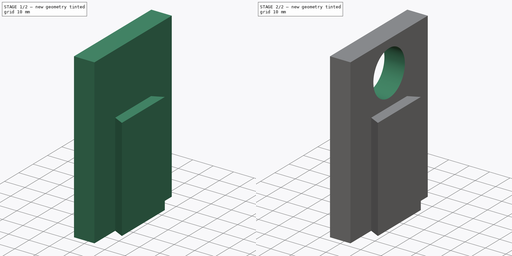
[diagram: build sequence overview — one tinted view per stage of 2, left to right]
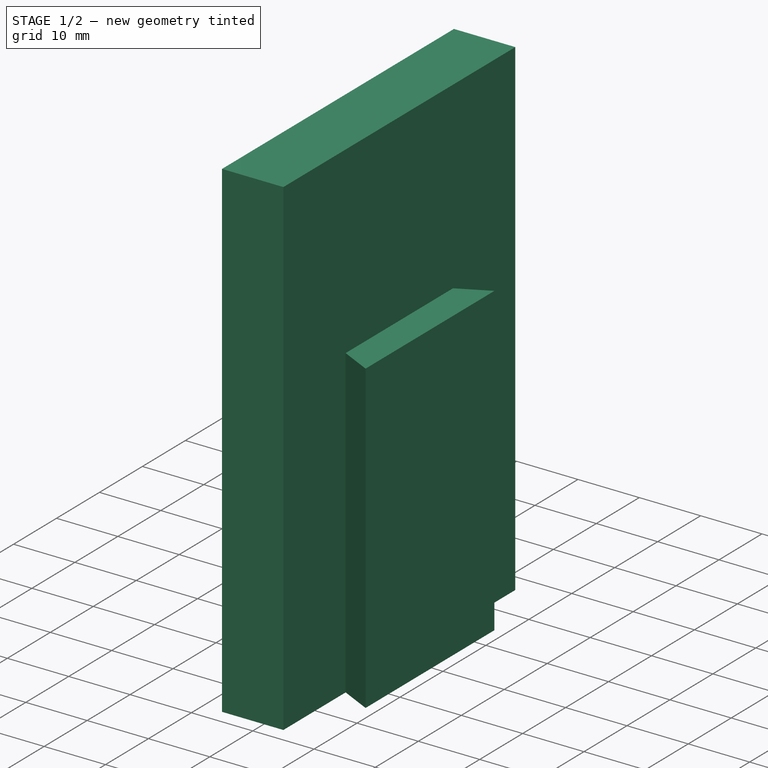
[diagram: stage 1 of 2 — iso view after this stage's code; geometry added in this stage tinted green]
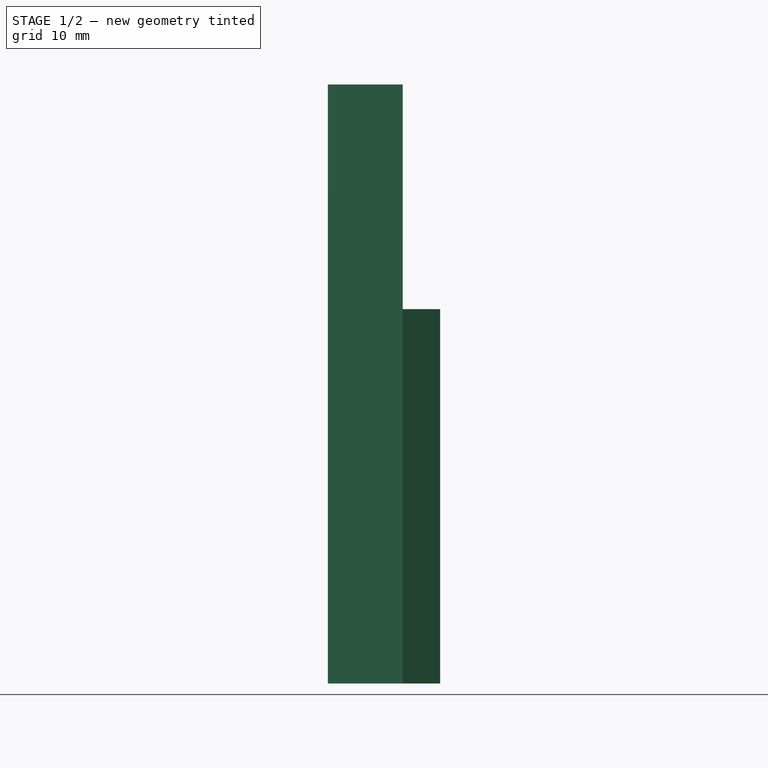
[diagram: stage 1 of 2 — front view after this stage's code; geometry added in this stage tinted green]
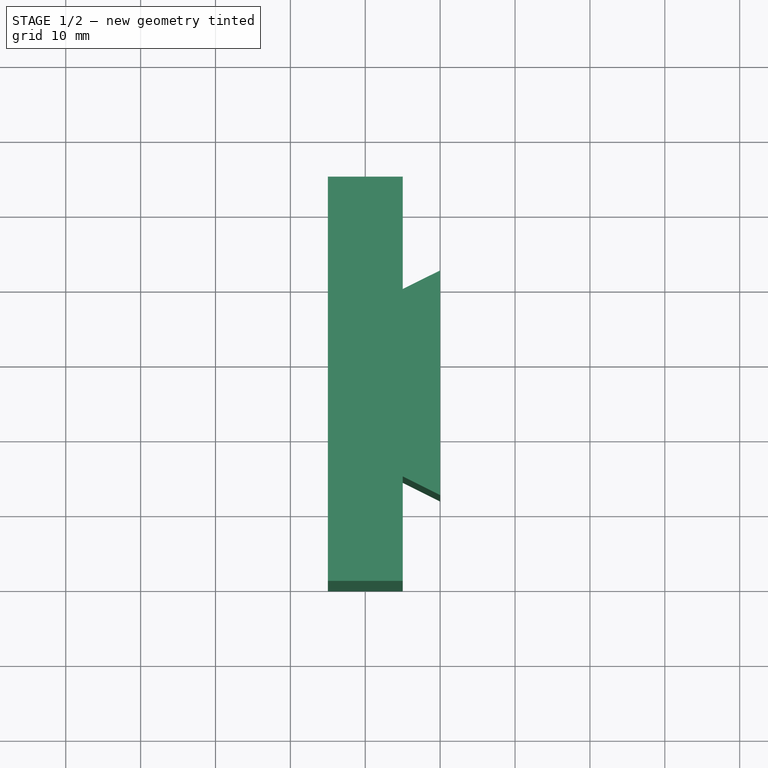
[diagram: stage 1 of 2 — top view after this stage's code; geometry added in this stage tinted green]
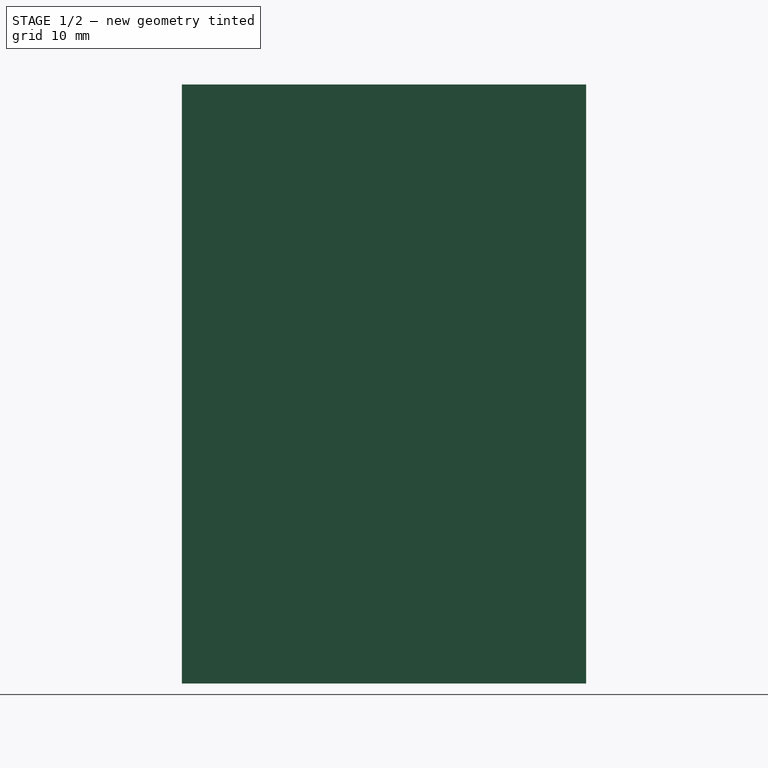
[diagram: stage 1 of 2 — right view after this stage's code; geometry added in this stage tinted green]
FCSTD DOCUMENT  (FreeCAD 0.17R13541 (Git))
Label: Vertical slider
License: All rights reserved
LicenseURL: http://en.wikipedia.org/wiki/All_rights_reserved
objects: Sketcher::SketchObject×3, PartDesign::Pad×2, PartDesign::Pocket×1, PartDesign::Body×1
note: 10 computed .brp shape members not serialized (recipe doc carries the construction recipe); baked Part::Feature solids carry a one-line shape summary decoded from their .brp

FEATURE [Sketcher::SketchObject] Sketch001
  MapMode = 5
  Support = -> [XY_Plane]
  sketch-geometry (8):
    g0: LineSegment StartX=-15 StartY=0 StartZ=0 EndX=-15 EndY=14.5 EndZ=0
    g1: LineSegment StartX=-15 StartY=54 StartZ=0 EndX=-15 EndY=39.5 EndZ=0
    g2: LineSegment StartX=-10 StartY=42 StartZ=0 EndX=-10 EndY=12 EndZ=0
    g3: LineSegment StartX=-10 StartY=42 StartZ=0 EndX=-15 EndY=39.5 EndZ=0
    g4: LineSegment StartX=-15 StartY=14.5 StartZ=0 EndX=-10 EndY=12 EndZ=0
    g5: LineSegment StartX=-15 StartY=0 StartZ=0 EndX=-25 EndY=0 EndZ=0
    g6: LineSegment StartX=-25 StartY=0 StartZ=0 EndX=-25 EndY=54 EndZ=0
    g7: LineSegment StartX=-25 StartY=54 StartZ=0 EndX=-15 EndY=54 EndZ=0
  constraints (23):
    c: Vertical(g0)
    c: Vertical(g1)
    c: Vertical(g1,g0)
    c: Vertical(g2)
    c: DistanceY(g-1,g2) = 12
    c: DistanceX(g0,g2) = 5
    c: Coincident(g3,g2)
    c: Coincident(g3,g1)
    c: Coincident(g4,g0)
    c: Coincident(g4,g2)
    c: Coincident(g5,g6)
    c: Coincident(g6,g7)
    c: Horizontal(g5)
    c: Horizontal(g7)
    c: Vertical(g6)
    c: DistanceX(g5,g5) = 10
    c: DistanceX(g5,g0) = 0
    c: DistanceX(g7,g-1) = 15
    c: DistanceX(g1,g-1) = 15
    c: Coincident(g7,g1)
    c: Coincident(g5,g0)
    c: DistanceY(g0,g-1) = 0
    c: DistanceY(g-1,g1) = 54
FEATURE [PartDesign::Pad] Pad
  Length = 50
  Length2 = 100
  Profile = -> Sketch001
  Type = 0
FEATURE [Sketcher::SketchObject] Sketch
  MapMode = 5
  Support = -> [XY_Plane]
  sketch-geometry (4):
    g0: LineSegment StartX=-15 StartY=0 StartZ=0 EndX=-25 EndY=0 EndZ=0
    g1: LineSegment StartX=-25 StartY=0 StartZ=0 EndX=-25 EndY=54 EndZ=0
    g2: LineSegment StartX=-25 StartY=54 StartZ=0 EndX=-15 EndY=54 EndZ=0
    g3: LineSegment StartX=-15 StartY=54 StartZ=0 EndX=-15 EndY=0 EndZ=0
  constraints (12):
    c: Coincident(g0,g1)
    c: Coincident(g1,g2)
    c: Coincident(g2,g3)
    c: Coincident(g3,g0)
    c: Horizontal(g0)
    c: Horizontal(g2)
    c: Vertical(g1)
    c: Vertical(g3)
    c: PointOnObject(g0,g-1)
    c: DistanceX(g0,g-1) = 15
    c: DistanceX(g1,g0) = 10
    c: DistanceY(g-1,g2) = 54
FEATURE [PartDesign::Pad] Pad001
  BaseFeature = -> Pad
  Length = 80
  Length2 = 100
  Profile = -> Sketch
  Type = 0
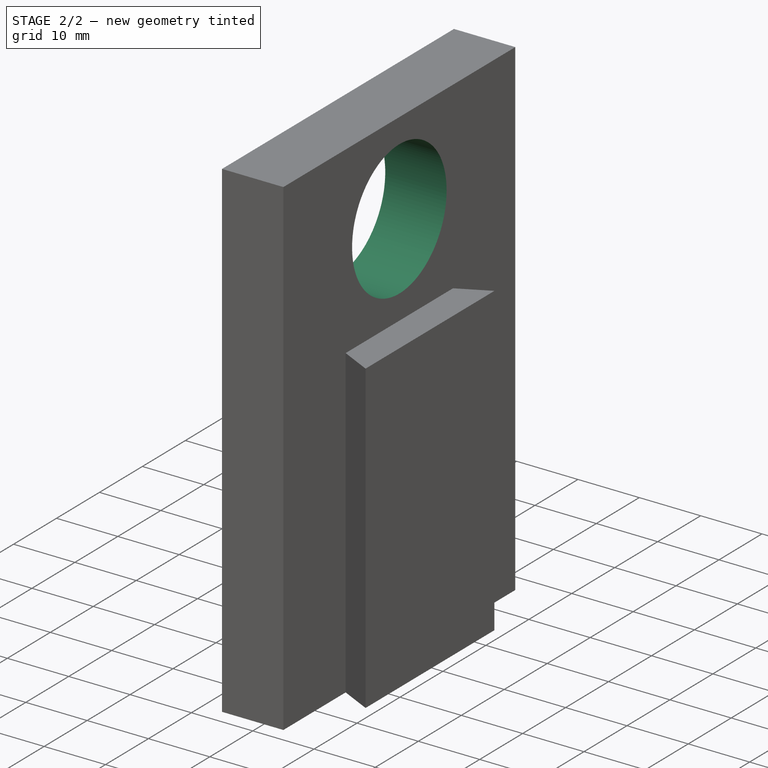
[diagram: stage 2 of 2 — iso view after this stage's code; geometry added in this stage tinted green]
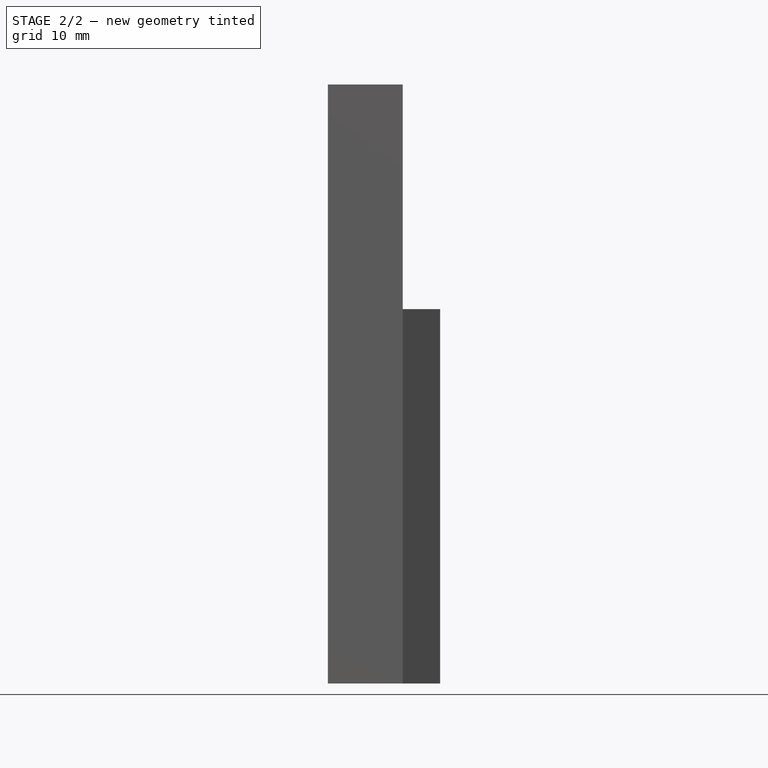
[diagram: stage 2 of 2 — front view after this stage's code; geometry added in this stage tinted green]
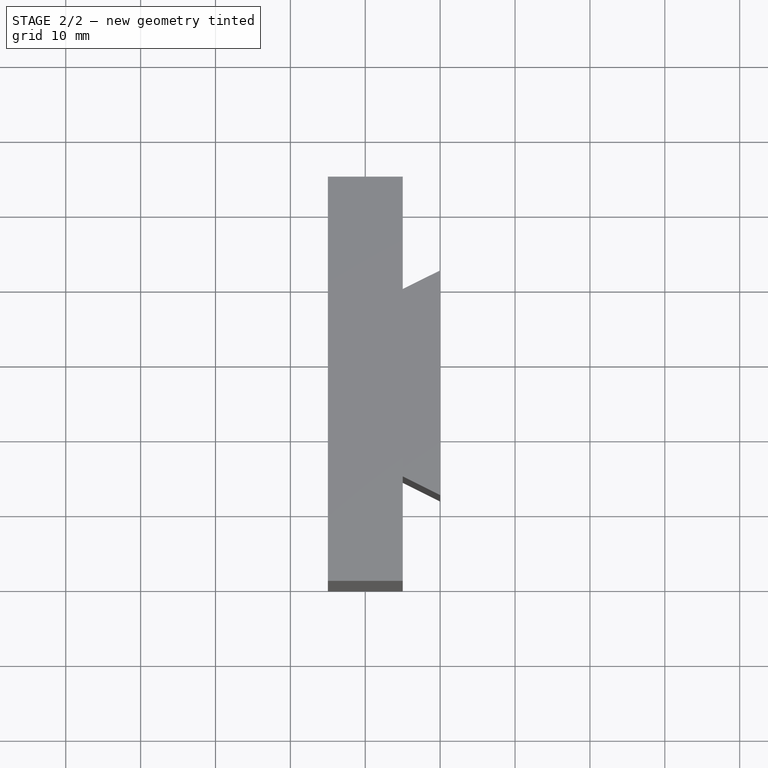
[diagram: stage 2 of 2 — top view after this stage's code; geometry added in this stage tinted green]
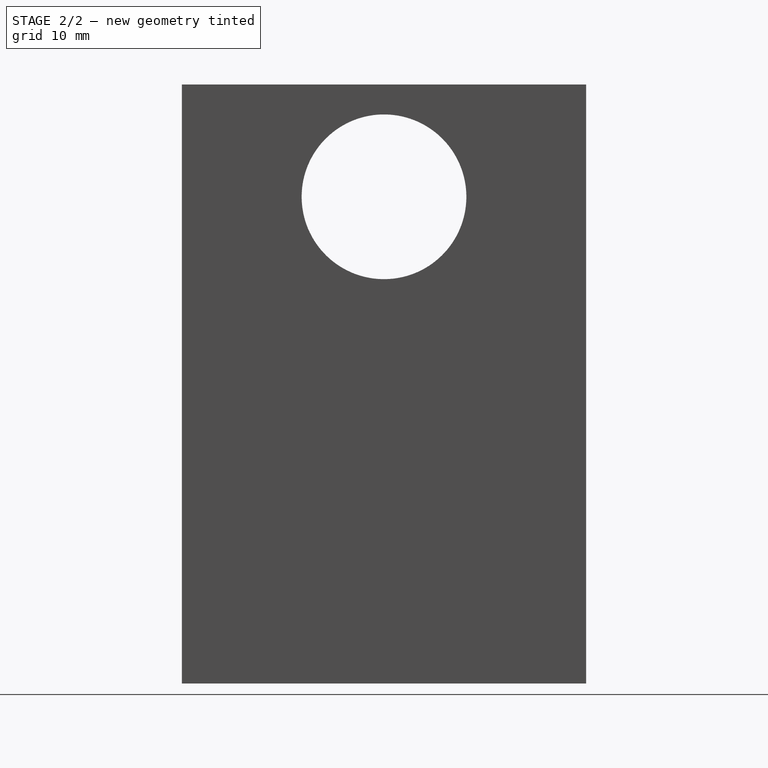
[diagram: stage 2 of 2 — right view after this stage's code; geometry added in this stage tinted green]
FEATURE [Sketcher::SketchObject] Sketch002
  MapMode = 5
  Placement = pos=(0,0,0) rot=(0.57735,0.57735,0.57735;2.0944rad)
  Support = -> [YZ_Plane]
  sketch-geometry (1):
    g0: Circle CenterX=27 CenterY=65 CenterZ=0 NormalX=0 NormalY=0 NormalZ=1 AngleXU=0 Radius=11
  constraints (3):
    c: Radius(g0) = 11
    c: DistanceX(g-1,g0) = 27
    c: DistanceY(g-1,g0) = 65
FEATURE [PartDesign::Pocket] Pocket
  BaseFeature = -> Pad001
  Length = 5
  Length2 = 100
  Profile = -> Sketch002
  Type = 1
FEATURE [PartDesign::Body] Body
  Group = -> [Sketch001,Pad,Sketch,Pad001,Sketch002,Pocket]
  Origin = -> Origin
  Tip = -> Pocket
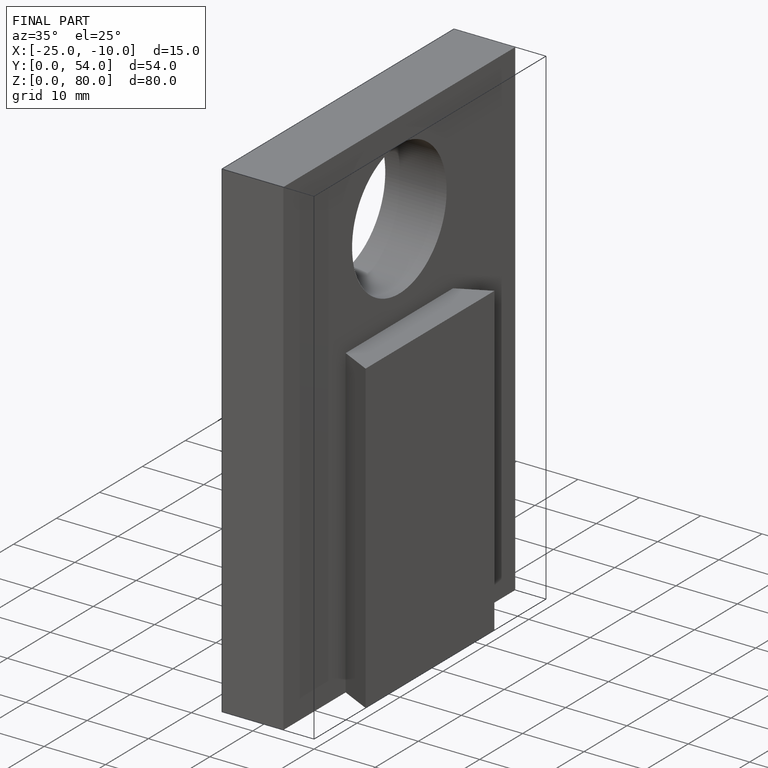
[diagram: finished part — iso view with bounding-box wireframe]
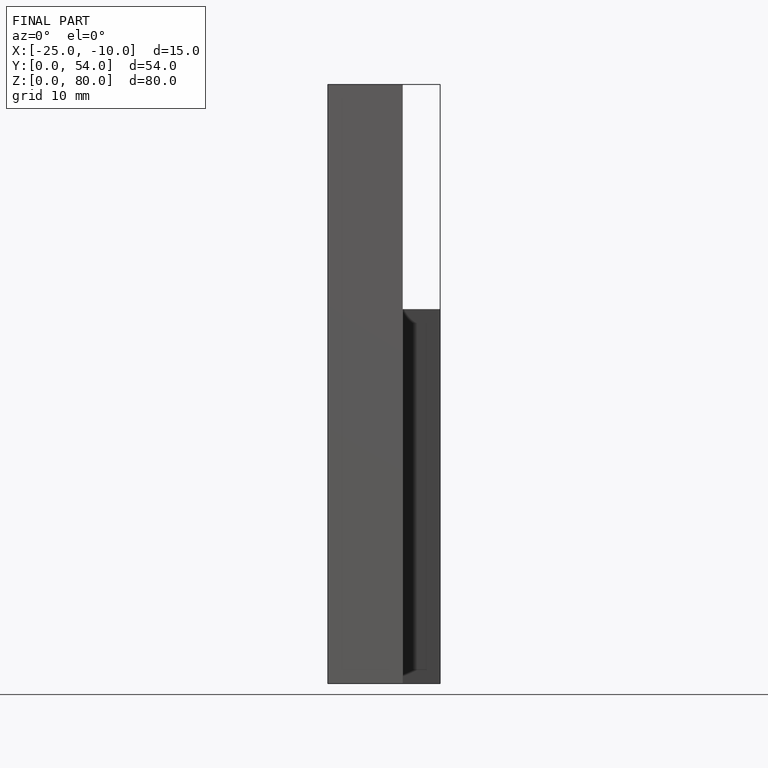
[diagram: finished part — front view with bounding-box wireframe]
